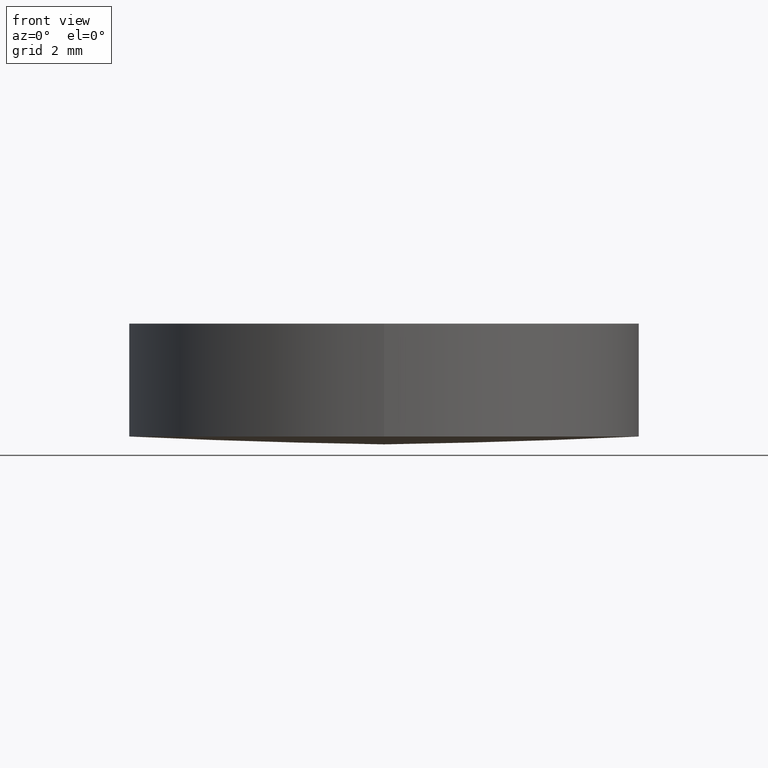
[diagram: clean part render]
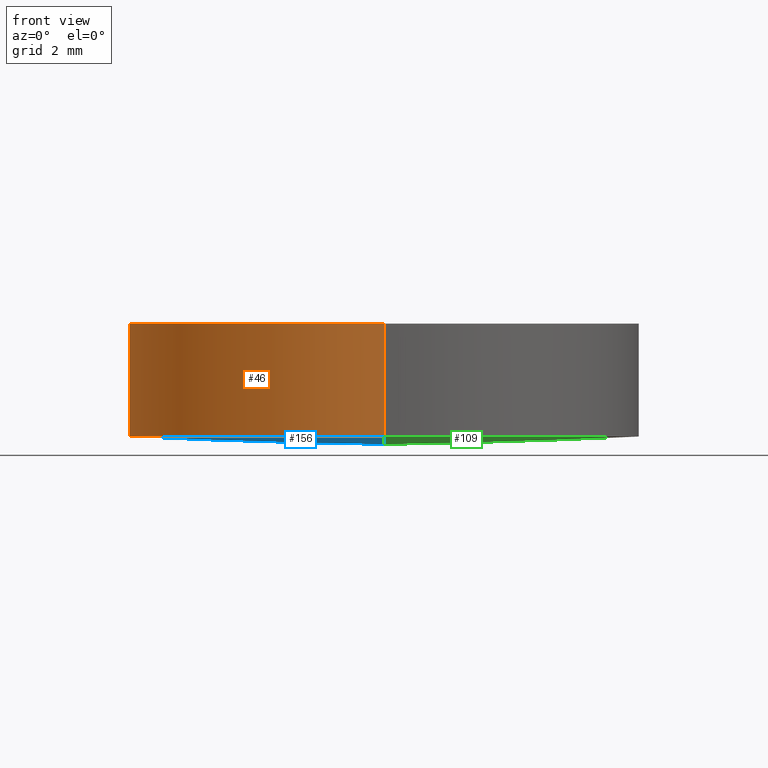
[diagram: same view with three faces highlighted in distinct colors, each labeled with its STEP entity id]
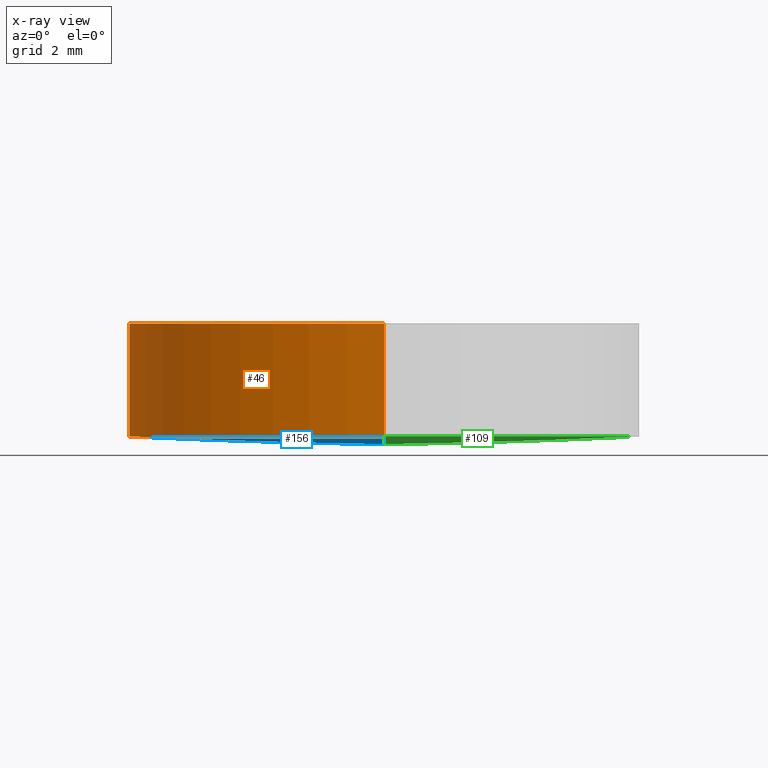
[diagram: x-ray of the same camera — body ghosted, the three highlighted faces saturated]
A machine part, front view with three faces highlighted in distinct colors.
The next image is the same camera in x-ray (body ghosted, the three faces saturated) — at least one of them is partly hidden behind the body in this view.
Their STEP definitions:

[orange] entity #46 — the highlighted cylindrical surface (partial cylindrical patch) has radius 6.35 mm, axis along (-0, -0, 1).
#18 = VERTEX_POINT ( 'NONE', #103 ) ;
#20 = DIRECTION ( 'NONE',  ( 0.0000000000000000000, -1.000000000000000000, -1.195183497228115300E-016 ) ) ;
#21 = CARTESIAN_POINT ( 'NONE',  ( 2.498001805406600200E-016, -6.349999999999998800, 0.1946015900619782200 ) ) ;
#31 = EDGE_CURVE ( 'NONE', #101, #128, #193, .T. ) ;
#37 = AXIS2_PLACEMENT_3D ( 'NONE', #168, #137, #20 ) ;
#39 = DIRECTION ( 'NONE',  ( 2.283316566636270100E-032, 1.187235674646670000E-016, -1.000000000000000000 ) ) ;
#46 = ADVANCED_FACE ( 'NONE', ( #191 ), #140, .T. ) ;
#50 = EDGE_CURVE ( 'NONE', #128, #18, #197, .T. ) ;
#52 = DIRECTION ( 'NONE',  ( -2.283316566636270100E-032, -1.187235674646670000E-016, 1.000000000000000000 ) ) ;
#62 = EDGE_CURVE ( 'NONE', #101, #148, #153, .T. ) ;
#68 = AXIS2_PLACEMENT_3D ( 'NONE', #151, #102, #149 ) ;
#69 = CARTESIAN_POINT ( 'NONE',  ( 2.498001805406599800E-016, -6.349999999999998800, 2.999999999999999100 ) ) ;
#76 = DIRECTION ( 'NONE',  ( -2.283316566636270100E-032, -1.187235674646670000E-016, 1.000000000000000000 ) ) ;
#99 = ORIENTED_EDGE ( 'NONE', *, *, #195, .F. ) ;
#101 = VERTEX_POINT ( 'NONE', #134 ) ;
#102 = DIRECTION ( 'NONE',  ( -2.283316566636270100E-032, -1.187235674646670000E-016, 1.000000000000000000 ) ) ;
#103 = CARTESIAN_POINT ( 'NONE',  ( 1.027450897999229200E-015, 6.350000000000000500, 3.000000000000000900 ) ) ;
#112 = VECTOR ( 'NONE', #52, 1000.000000000000000 ) ;
#119 = VECTOR ( 'NONE', #76, 1000.000000000000000 ) ;
#125 = EDGE_LOOP ( 'NONE', ( #99, #196, #160, #142 ) ) ;
#128 = VERTEX_POINT ( 'NONE', #69 ) ;
#134 = CARTESIAN_POINT ( 'NONE',  ( 2.498001805406600200E-016, -6.349999999999998800, 0.1946015900619782200 ) ) ;
#137 = DIRECTION ( 'NONE',  ( 2.283316566636270100E-032, 1.187235674646670000E-016, -1.000000000000000000 ) ) ;
#140 = CYLINDRICAL_SURFACE ( 'NONE', #68, 6.349999999999999600 ) ;
#142 = ORIENTED_EDGE ( 'NONE', *, *, #50, .T. ) ;
#148 = VERTEX_POINT ( 'NONE', #203 ) ;
#149 = DIRECTION ( 'NONE',  ( 0.0000000000000000000, -1.000000000000000000, -1.195183497228115300E-016 ) ) ;
#151 = CARTESIAN_POINT ( 'NONE',  ( 2.498001805406600200E-016, 1.221245327087670000E-015, 0.1946015900619790000 ) ) ;
#152 = DIRECTION ( 'NONE',  ( 0.0000000000000000000, -1.000000000000000000, -1.365923996832131600E-016 ) ) ;
#153 = CIRCLE ( 'NONE', #37, 6.349999999999999600 ) ;
#154 = CARTESIAN_POINT ( 'NONE',  ( 1.027450897999229200E-015, 6.350000000000000500, 0.1946015900619797500 ) ) ;
#160 = ORIENTED_EDGE ( 'NONE', *, *, #31, .T. ) ;
#166 = AXIS2_PLACEMENT_3D ( 'NONE', #200, #39, #152 ) ;
#168 = CARTESIAN_POINT ( 'NONE',  ( 2.498001805406600200E-016, 1.221245327087670000E-015, 0.1946015900619790000 ) ) ;
#191 = FACE_OUTER_BOUND ( 'NONE', #125, .T. ) ;
#193 = LINE ( 'NONE', #21, #112 ) ;
#195 = EDGE_CURVE ( 'NONE', #148, #18, #207, .T. ) ;
#196 = ORIENTED_EDGE ( 'NONE', *, *, #62, .F. ) ;
#197 = CIRCLE ( 'NONE', #166, 6.349999999999999600 ) ;
#200 = CARTESIAN_POINT ( 'NONE',  ( 2.498001805406599800E-016, 8.881784197001237500E-016, 3.000000000000000000 ) ) ;
#203 = CARTESIAN_POINT ( 'NONE',  ( 1.027450897999229200E-015, 6.350000000000000500, 0.1946015900619797500 ) ) ;
#207 = LINE ( 'NONE', #154, #119 ) ;

[blue] entity #156 — the highlighted face is a freeform B-spline surface patch.
#20 = DIRECTION ( 'NONE',  ( 0.0000000000000000000, -1.000000000000000000, -1.195183497228115300E-016 ) ) ;
#34 = DIRECTION ( 'NONE',  ( 1.000000000000000000, 0.0000000000000000000, -2.832073977186420200E-016 ) ) ;
#36 = CARTESIAN_POINT ( 'NONE',  ( 7.105427357601000300E-015, -7.105427357601000300E-015, 103.7000000000000000 ) ) ;
#37 = AXIS2_PLACEMENT_3D ( 'NONE', #168, #137, #20 ) ;
#40 = CARTESIAN_POINT ( 'NONE',  ( -4.683753385137379200E-014, -2.144782301332798500, -0.06651807476403397100 ) ) ;
#56 = CARTESIAN_POINT ( 'NONE',  ( -6.414061793205780400, -2.144782301332798500, 0.1319060488546585100 ) ) ;
#58 = CARTESIAN_POINT ( 'NONE',  ( -6.397631019017631500, -6.426102892568319900, 0.3972143698020708100 ) ) ;
#61 = ORIENTED_EDGE ( 'NONE', *, *, #62, .T. ) ;
#62 = EDGE_CURVE ( 'NONE', #101, #148, #153, .T. ) ;
#71 = CARTESIAN_POINT ( 'NONE',  ( -6.397631019017631500, 6.426102892568316300, 0.3972143698020708100 ) ) ;
#73 = CARTESIAN_POINT ( 'NONE',  ( -4.278427892267526300, -2.144782301332798500, -0.0003556090140736337500 ) ) ;
#74 = CARTESIAN_POINT ( 'NONE',  ( -4.683753385137379200E-014, -6.426102892568319900, 0.1992985453039315700 ) ) ;
#82 = DIRECTION ( 'NONE',  ( 0.0000000000000000000, -1.000000000000000000, 0.0000000000000000000 ) ) ;
#84 = EDGE_CURVE ( 'NONE', #101, #148, #182, .T. ) ;
#91 = CARTESIAN_POINT ( 'NONE',  ( -4.278427892267526300, 2.144782301332795300, -0.0003556090140740674400 ) ) ;
#92 = CARTESIAN_POINT ( 'NONE',  ( -2.139725520944014000, 2.144782301332795300, -0.06651807476403326400 ) ) ;
#101 = VERTEX_POINT ( 'NONE', #134 ) ;
#104 = CARTESIAN_POINT ( 'NONE',  ( -4.267467928855170500, 6.426102892568316300, 0.2652915239847744000 ) ) ;
#108 = FACE_OUTER_BOUND ( 'NONE', #133, .T. ) ;
#110 = CARTESIAN_POINT ( 'NONE',  ( -6.414061793205780400, 2.144782301332795300, 0.1319060488546580600 ) ) ;
#111 = CARTESIAN_POINT ( 'NONE',  ( -2.139725520944014000, -2.144782301332798500, -0.06651807476403283300 ) ) ;
#118 = AXIS2_PLACEMENT_3D ( 'NONE', #36, #34, #82 ) ;
#120 =( BOUNDED_SURFACE ( )  B_SPLINE_SURFACE ( 3, 3, ( 
 ( #58, #172, #169, #74 ),
 ( #56, #73, #111, #40 ),
 ( #110, #91, #92, #190 ),
 ( #71, #104, #209, #124 ) ),
 .UNSPECIFIED., .F., .F., .F. ) 
 B_SPLINE_SURFACE_WITH_KNOTS ( ( 4, 4 ),
 ( 4, 4 ),
 ( 0.0000000000000000000, 1.000000000000000000 ),
 ( 0.0000000000000000000, 1.000000000000000000 ),
 .UNSPECIFIED. ) 
 GEOMETRIC_REPRESENTATION_ITEM ( )  RATIONAL_B_SPLINE_SURFACE ( (
 ( 1.000000000000000000, 0.9996812209134802200, 0.9996812209134802200, 1.000000000000000000),
 ( 0.9987187493069500400, 0.9984003786563557800, 0.9984003786563557800, 0.9987187493069500400),
 ( 0.9987187493069500400, 0.9984003786563557800, 0.9984003786563557800, 0.9987187493069500400),
 ( 1.000000000000000000, 0.9996812209134802200, 0.9996812209134802200, 1.000000000000000000) ) ) 
 REPRESENTATION_ITEM ( '' )  SURFACE ( )  );
#124 = CARTESIAN_POINT ( 'NONE',  ( -4.683753385137379200E-014, 6.426102892568316300, 0.1992985453039315700 ) ) ;
#133 = EDGE_LOOP ( 'NONE', ( #157, #61 ) ) ;
#134 = CARTESIAN_POINT ( 'NONE',  ( 2.498001805406600200E-016, -6.349999999999998800, 0.1946015900619782200 ) ) ;
#137 = DIRECTION ( 'NONE',  ( 2.283316566636270100E-032, 1.187235674646670000E-016, -1.000000000000000000 ) ) ;
#148 = VERTEX_POINT ( 'NONE', #203 ) ;
#153 = CIRCLE ( 'NONE', #37, 6.349999999999999600 ) ;
#156 = ADVANCED_FACE ( 'NONE', ( #108 ), #120, .T. ) ;
#157 = ORIENTED_EDGE ( 'NONE', *, *, #84, .F. ) ;
#168 = CARTESIAN_POINT ( 'NONE',  ( 2.498001805406600200E-016, 1.221245327087670000E-015, 0.1946015900619790000 ) ) ;
#169 = CARTESIAN_POINT ( 'NONE',  ( -2.134244228746845700, -6.426102892568319900, 0.1992985453039326200 ) ) ;
#172 = CARTESIAN_POINT ( 'NONE',  ( -4.267467928855170500, -6.426102892568319900, 0.2652915239847744000 ) ) ;
#182 = CIRCLE ( 'NONE', #118, 103.6999999999999900 ) ;
#190 = CARTESIAN_POINT ( 'NONE',  ( -4.683753385137379200E-014, 2.144782301332795300, -0.06651807476403440200 ) ) ;
#203 = CARTESIAN_POINT ( 'NONE',  ( 1.027450897999229200E-015, 6.350000000000000500, 0.1946015900619797500 ) ) ;
#209 = CARTESIAN_POINT ( 'NONE',  ( -2.134244228746845700, 6.426102892568316300, 0.1992985453039326200 ) ) ;

[green] entity #109 — the highlighted face is a freeform B-spline surface patch.
#2 = EDGE_CURVE ( 'NONE', #148, #101, #147, .T. ) ;
#23 = DIRECTION ( 'NONE',  ( 0.0000000000000000000, -1.000000000000000000, -1.195183497228115300E-016 ) ) ;
#24 = CARTESIAN_POINT ( 'NONE',  ( 2.043161026041667600E-016, 2.144782301332795300, -0.06651807476402445100 ) ) ;
#34 = DIRECTION ( 'NONE',  ( 1.000000000000000000, 0.0000000000000000000, -2.832073977186420200E-016 ) ) ;
#36 = CARTESIAN_POINT ( 'NONE',  ( 7.105427357601000300E-015, -7.105427357601000300E-015, 103.7000000000000000 ) ) ;
#38 = CARTESIAN_POINT ( 'NONE',  ( 2.498001805406600200E-016, 1.221245327087670000E-015, 0.1946015900619790000 ) ) ;
#41 = CARTESIAN_POINT ( 'NONE',  ( 2.043161026041667900E-016, -2.144782301332798500, -0.06651807476402404900 ) ) ;
#51 = EDGE_LOOP ( 'NONE', ( #130, #167 ) ) ;
#72 = CARTESIAN_POINT ( 'NONE',  ( 4.267467928855160700, -6.426102892568319900, 0.2652915239847752300 ) ) ;
#79 =( BOUNDED_SURFACE ( )  B_SPLINE_SURFACE ( 3, 3, ( 
 ( #165, #136, #72, #88 ),
 ( #41, #143, #139, #187 ),
 ( #24, #188, #126, #85 ),
 ( #204, #189, #123, #106 ) ),
 .UNSPECIFIED., .F., .F., .F. ) 
 B_SPLINE_SURFACE_WITH_KNOTS ( ( 4, 4 ),
 ( 4, 4 ),
 ( 0.0000000000000000000, 1.000000000000000000 ),
 ( 0.0000000000000000000, 1.000000000000000000 ),
 .UNSPECIFIED. ) 
 GEOMETRIC_REPRESENTATION_ITEM ( )  RATIONAL_B_SPLINE_SURFACE ( (
 ( 1.000000000000000000, 0.9996812209134802200, 0.9996812209134802200, 1.000000000000000000),
 ( 0.9987187493069500400, 0.9984003786563557800, 0.9984003786563557800, 0.9987187493069500400),
 ( 0.9987187493069500400, 0.9984003786563557800, 0.9984003786563557800, 0.9987187493069500400),
 ( 1.000000000000000000, 0.9996812209134802200, 0.9996812209134802200, 1.000000000000000000) ) ) 
 REPRESENTATION_ITEM ( '' )  SURFACE ( )  );
#82 = DIRECTION ( 'NONE',  ( 0.0000000000000000000, -1.000000000000000000, 0.0000000000000000000 ) ) ;
#84 = EDGE_CURVE ( 'NONE', #101, #148, #182, .T. ) ;
#85 = CARTESIAN_POINT ( 'NONE',  ( 6.414061793205790200, 2.144782301332795300, 0.1319060488546600400 ) ) ;
#88 = CARTESIAN_POINT ( 'NONE',  ( 6.397631019017640400, -6.426102892568319900, 0.3972143698020727500 ) ) ;
#100 = FACE_OUTER_BOUND ( 'NONE', #51, .T. ) ;
#101 = VERTEX_POINT ( 'NONE', #134 ) ;
#106 = CARTESIAN_POINT ( 'NONE',  ( 6.397631019017640400, 6.426102892568316300, 0.3972143698020727500 ) ) ;
#109 = ADVANCED_FACE ( 'NONE', ( #100 ), #79, .T. ) ;
#118 = AXIS2_PLACEMENT_3D ( 'NONE', #36, #34, #82 ) ;
#123 = CARTESIAN_POINT ( 'NONE',  ( 4.267467928855160700, 6.426102892568316300, 0.2652915239847752300 ) ) ;
#126 = CARTESIAN_POINT ( 'NONE',  ( 4.278427892267517400, 2.144782301332795300, -0.0003556090140732000700 ) ) ;
#130 = ORIENTED_EDGE ( 'NONE', *, *, #2, .T. ) ;
#131 = AXIS2_PLACEMENT_3D ( 'NONE', #38, #184, #23 ) ;
#134 = CARTESIAN_POINT ( 'NONE',  ( 2.498001805406600200E-016, -6.349999999999998800, 0.1946015900619782200 ) ) ;
#136 = CARTESIAN_POINT ( 'NONE',  ( 2.134244228746817700, -6.426102892568319900, 0.1992985453039412300 ) ) ;
#139 = CARTESIAN_POINT ( 'NONE',  ( 4.278427892267517400, -2.144782301332798500, -0.0003556090140727663900 ) ) ;
#143 = CARTESIAN_POINT ( 'NONE',  ( 2.139725520943986000, -2.144782301332798500, -0.06651807476402417400 ) ) ;
#147 = CIRCLE ( 'NONE', #131, 6.349999999999999600 ) ;
#148 = VERTEX_POINT ( 'NONE', #203 ) ;
#165 = CARTESIAN_POINT ( 'NONE',  ( 2.219945416859767500E-016, -6.426102892568319900, 0.1992985453039414200 ) ) ;
#167 = ORIENTED_EDGE ( 'NONE', *, *, #84, .T. ) ;
#182 = CIRCLE ( 'NONE', #118, 103.6999999999999900 ) ;
#184 = DIRECTION ( 'NONE',  ( 2.283316566636270100E-032, 1.187235674646670000E-016, -1.000000000000000000 ) ) ;
#187 = CARTESIAN_POINT ( 'NONE',  ( 6.414061793205790200, -2.144782301332798500, 0.1319060488546605100 ) ) ;
#188 = CARTESIAN_POINT ( 'NONE',  ( 2.139725520943986000, 2.144782301332795300, -0.06651807476402460400 ) ) ;
#189 = CARTESIAN_POINT ( 'NONE',  ( 2.134244228746817700, 6.426102892568316300, 0.1992985453039412300 ) ) ;
#203 = CARTESIAN_POINT ( 'NONE',  ( 1.027450897999229200E-015, 6.350000000000000500, 0.1946015900619797500 ) ) ;
#204 = CARTESIAN_POINT ( 'NONE',  ( 2.219945416859767500E-016, 6.426102892568316300, 0.1992985453039414200 ) ) ;